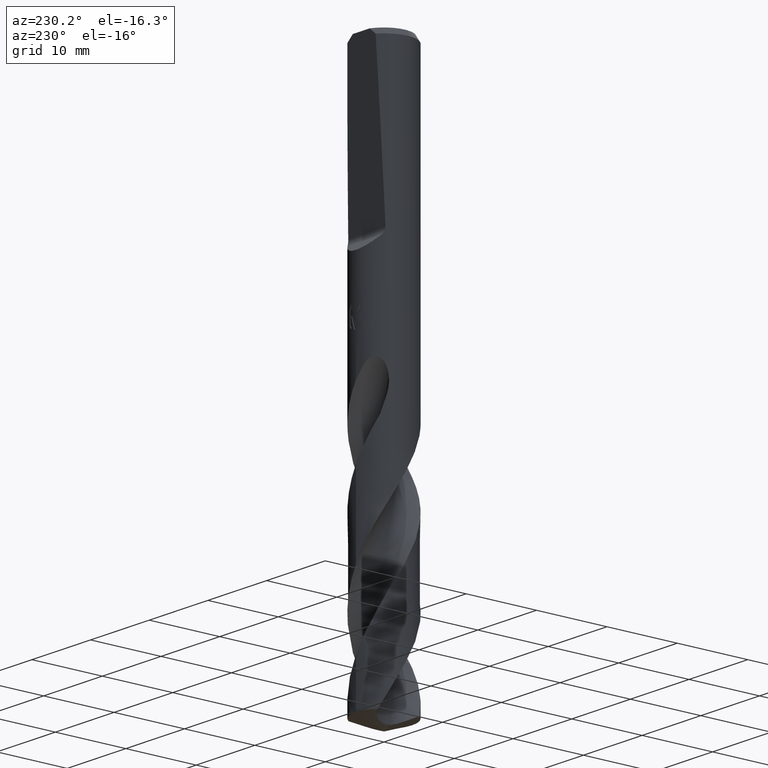
[diagram: clean part render]
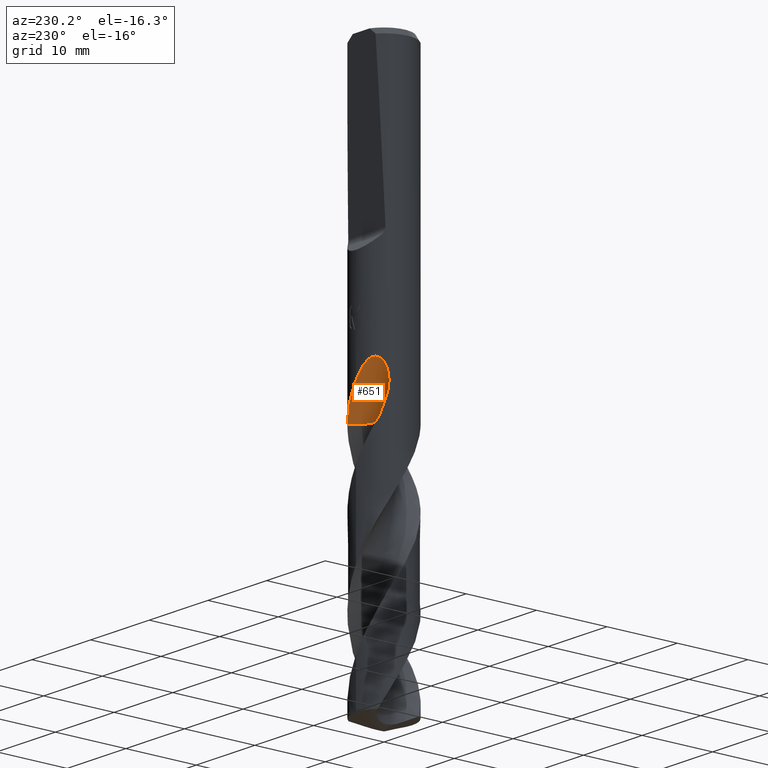
[diagram: same view with one face highlighted and labeled with its STEP entity id]
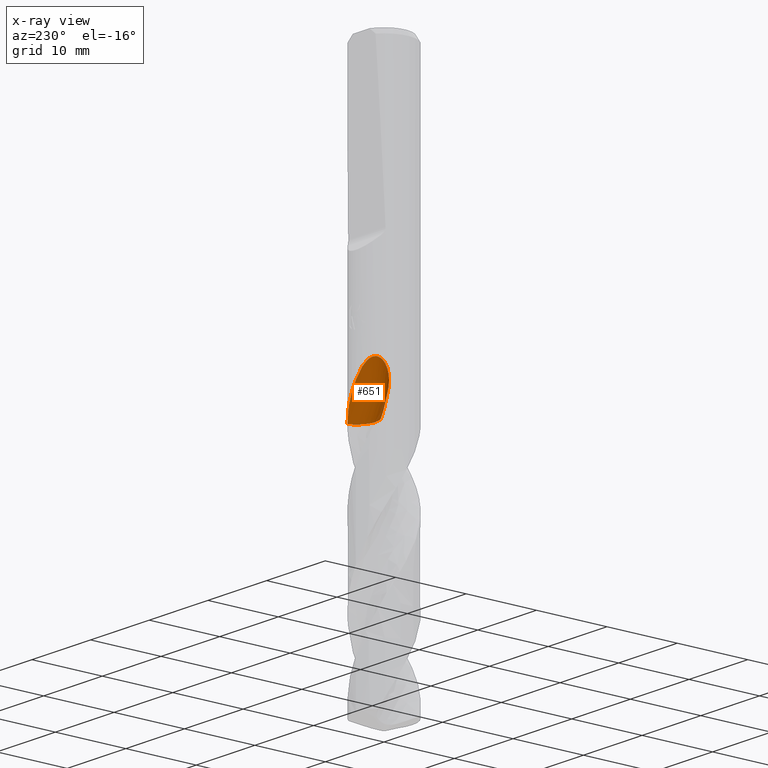
[diagram: x-ray of the same camera — body ghosted, the highlighted face saturated]
A machine part, auxiliary view. The second image highlights one B-rep face of the part: STEP entity #651.
The next image is the same camera in x-ray: the body ghosted, the highlighted face saturated — about 0% of this face is hidden behind the body in this view.
In plain terms, the highlighted face is a SurfaceOfRevolution surface.
Its self-contained STEP definition (entity closure, byte-faithful):
#291=VERTEX_POINT('',#822);
#335=EDGE_CURVE('',#445,#657,#870,.T.);
#337=EDGE_CURVE('',#535,#427,#872,.T.);
#399=EDGE_CURVE('',#427,#657,#937,.T.);
#427=VERTEX_POINT('',#967);
#445=VERTEX_POINT('',#986);
#475=EDGE_CURVE('',#291,#535,#1020,.T.);
#517=EDGE_CURVE('',#291,#445,#1066,.T.);
#535=VERTEX_POINT('',#1085);
#651=ADVANCED_FACE('',(#1215),#1216,.F.);
#657=VERTEX_POINT('',#1223);
#822=CARTESIAN_POINT('',(2.54885976013372,3.08274454393663,-44.053));
#870=B_SPLINE_CURVE_WITH_KNOTS('',3,(#1747,#1748,#1749,#1750,#1751,#1752,#1753,#1754,#1755,#1756,#1757,#1758,#1759,#1760,#1761,#1762,#1763,#1764,#1765,#1766,#1767,#1768,#1769,#1770,#1771,#1772,#1773,#1774,#1775,#1776),.UNSPECIFIED.,.F.,.F.,(4,2,2,2,2,2,2,2,2,2,2,2,2,2,4),(0.0,1.95977624076947,3.02985967370601,3.99908599318628,5.12509377225497,6.47768674139893,7.65000215056745,8.18125540149243,8.56953673186918,8.93696441781958,9.40306833899562,10.0849972789289,11.0544394482072,11.6888355435218,12.3555427460094),.UNSPECIFIED.);
#872=CIRCLE('',#1779,2.66666667);
#937=CIRCLE('',#3484,17.3810396163249);
#967=CARTESIAN_POINT('',(-1.88561808545044,1.98104858454956,-44.053));
#986=CARTESIAN_POINT('',(-1.18618515617536E-012,4.0,-39.8010886237942));
#1020=CIRCLE('',#3808,2.66666667);
#1066=B_SPLINE_CURVE_WITH_KNOTS('',3,(#5105,#5106,#5107,#5108,#5109,#5110,#5111,#5112,#5113,#5114,#5115,#5116,#5117,#5118,#5119,#5120,#5121,#5122,#5123,#5124,#5125,#5126,#5127,#5128,#5129,#5130,#5131,#5132,#5133,#5134),.UNSPECIFIED.,.F.,.F.,(4,2,2,2,2,2,2,2,2,2,2,2,2,2,4),(0.0,1.95977624076947,3.02985967370601,3.99908599318628,5.12509377225497,6.47768674139893,7.65000215056745,8.18125540149243,8.56953673186918,8.93696441781958,9.40306833899562,10.0849972789289,11.0544394482072,11.6888355435218,12.3555427460094),.UNSPECIFIED.);
#1085=CARTESIAN_POINT('',(-0.430226028381969,1.23492036873686,-44.053));
#1215=FACE_OUTER_BOUND('',#6675,.T.);
#1216=SURFACE_OF_REVOLUTION('',#6676,#6677);
#1223=CARTESIAN_POINT('',(-3.25456865325919,2.32546401417495,-41.862679091506));
#1747=CARTESIAN_POINT('',(2.54885976013372,3.08274454393663,-44.053));
#1748=CARTESIAN_POINT('',(2.28500523660261,3.30090345005828,-43.4966417767988));
#1749=CARTESIAN_POINT('',(1.98163231588755,3.49483155995579,-42.977936421169));
#1750=CARTESIAN_POINT('',(1.45264038690851,3.73253113273964,-42.1114036522164));
#1751=CARTESIAN_POINT('',(1.26228426683794,3.80090830680974,-41.8065283302372));
#1752=CARTESIAN_POINT('',(0.893778878987872,3.90310035133813,-41.2163687713547));
#1753=CARTESIAN_POINT('',(0.717274980064568,3.93920455800775,-40.9338353559214));
#1754=CARTESIAN_POINT('',(0.33521839832061,3.99131183045806,-40.3249008687614));
#1755=CARTESIAN_POINT('',(0.126474396085212,4.00354517408276,-39.9937333591078));
#1756=CARTESIAN_POINT('',(-0.337092631504132,3.99379417253619,-39.2852567198373));
#1757=CARTESIAN_POINT('',(-0.611941054861174,3.96363461880695,-38.8821257542007));
#1758=CARTESIAN_POINT('',(-1.14195068256935,3.84183599193105,-38.2173906398542));
#1759=CARTESIAN_POINT('',(-1.43518376737336,3.74904084478621,-37.8930259656217));
#1760=CARTESIAN_POINT('',(-1.87898919238026,3.53454780533531,-37.5892910671245));
#1761=CARTESIAN_POINT('',(-2.02589175203402,3.45357173492742,-37.5142260075858));
#1762=CARTESIAN_POINT('',(-2.28329880223286,3.28684001880265,-37.4565626198684));
#1763=CARTESIAN_POINT('',(-2.38887588461981,3.21090914700583,-37.4554859280565));
#1764=CARTESIAN_POINT('',(-2.58551889986573,3.05450740730473,-37.5059535003711));
#1765=CARTESIAN_POINT('',(-2.67152074136922,2.97896849222708,-37.5532713078944));
#1766=CARTESIAN_POINT('',(-2.8465335331701,2.81343086569157,-37.7013232644774));
#1767=CARTESIAN_POINT('',(-2.92750237022738,2.72764511666503,-37.8106329899809));
#1768=CARTESIAN_POINT('',(-3.09335272716449,2.54032566393313,-38.1099569518954));
#1769=CARTESIAN_POINT('',(-3.17262589307935,2.43831682967142,-38.331966872197));
#1770=CARTESIAN_POINT('',(-3.32169614375785,2.23348439746403,-38.953125946192));
#1771=CARTESIAN_POINT('',(-3.37558848211908,2.14623565430961,-39.3955071231946));
#1772=CARTESIAN_POINT('',(-3.40226299691169,2.10356902640446,-40.21424616535));
#1773=CARTESIAN_POINT('',(-3.39599104218287,2.1139685132873,-40.5403087544243));
#1774=CARTESIAN_POINT('',(-3.35169145718829,2.18356392775092,-41.2020529092011));
#1775=CARTESIAN_POINT('',(-3.31213718412787,2.24489483106254,-41.5352437340999));
#1776=CARTESIAN_POINT('',(-3.25456865325918,2.32546401417496,-41.862679091506));
#1779=AXIS2_PLACEMENT_3D('',#7995,#7996,#7997);
#3484=AXIS2_PLACEMENT_3D('',#8025,#8026,#8027);
#3808=AXIS2_PLACEMENT_3D('',#8103,#8104,#8105);
#5105=CARTESIAN_POINT('',(2.54885976013372,3.08274454393663,-44.053));
#5106=CARTESIAN_POINT('',(2.28500523660261,3.30090345005828,-43.4966417767988));
#5107=CARTESIAN_POINT('',(1.98163231588755,3.49483155995579,-42.977936421169));
#5108=CARTESIAN_POINT('',(1.45264038690851,3.73253113273964,-42.1114036522164));
#5109=CARTESIAN_POINT('',(1.26228426683794,3.80090830680974,-41.8065283302372));
#5110=CARTESIAN_POINT('',(0.893778878987872,3.90310035133813,-41.2163687713547));
#5111=CARTESIAN_POINT('',(0.717274980064568,3.93920455800775,-40.9338353559214));
#5112=CARTESIAN_POINT('',(0.33521839832061,3.99131183045806,-40.3249008687614));
#5113=CARTESIAN_POINT('',(0.126474396085212,4.00354517408276,-39.9937333591078));
#5114=CARTESIAN_POINT('',(-0.337092631504132,3.99379417253619,-39.2852567198373));
#5115=CARTESIAN_POINT('',(-0.611941054861174,3.96363461880695,-38.8821257542007));
#5116=CARTESIAN_POINT('',(-1.14195068256935,3.84183599193105,-38.2173906398542));
#5117=CARTESIAN_POINT('',(-1.43518376737336,3.74904084478621,-37.8930259656217));
#5118=CARTESIAN_POINT('',(-1.87898919238026,3.53454780533531,-37.5892910671245));
#5119=CARTESIAN_POINT('',(-2.02589175203402,3.45357173492742,-37.5142260075858));
#5120=CARTESIAN_POINT('',(-2.28329880223286,3.28684001880265,-37.4565626198684));
#5121=CARTESIAN_POINT('',(-2.38887588461981,3.21090914700583,-37.4554859280565));
#5122=CARTESIAN_POINT('',(-2.58551889986573,3.05450740730473,-37.5059535003711));
#5123=CARTESIAN_POINT('',(-2.67152074136922,2.97896849222708,-37.5532713078944));
#5124=CARTESIAN_POINT('',(-2.8465335331701,2.81343086569157,-37.7013232644774));
#5125=CARTESIAN_POINT('',(-2.92750237022738,2.72764511666503,-37.8106329899809));
#5126=CARTESIAN_POINT('',(-3.09335272716449,2.54032566393313,-38.1099569518954));
#5127=CARTESIAN_POINT('',(-3.17262589307935,2.43831682967142,-38.331966872197));
#5128=CARTESIAN_POINT('',(-3.32169614375785,2.23348439746403,-38.953125946192));
#5129=CARTESIAN_POINT('',(-3.37558848211908,2.14623565430961,-39.3955071231946));
#5130=CARTESIAN_POINT('',(-3.40226299691169,2.10356902640446,-40.21424616535));
#5131=CARTESIAN_POINT('',(-3.39599104218287,2.1139685132873,-40.5403087544243));
#5132=CARTESIAN_POINT('',(-3.35169145718829,2.18356392775092,-41.2020529092011));
#5133=CARTESIAN_POINT('',(-3.31213718412787,2.24489483106254,-41.5352437340999));
#5134=CARTESIAN_POINT('',(-3.25456865325918,2.32546401417496,-41.862679091506));
#6675=EDGE_LOOP('',(#8328,#8329,#8330,#8331,#8332));
#6676=(B_SPLINE_CURVE(3,(#8334,#8335,#8336,#8337,#8338,#8339,#8340,#8341,#8342),.UNSPECIFIED.,.F.,.F.)B_SPLINE_CURVE_WITH_KNOTS((4,1,3,1,4),(-2.85637185927229,-2.55358282198741,-2.25079378470252,-1.94800474741763,-1.64521571013274),.UNSPECIFIED.)RATIONAL_B_SPLINE_CURVE((1.09168120109991,1.03056040036664,0.969439599633363,1.03056040036664,1.09168120109991,1.03056040036664,0.969439599633363,1.03056040036664,1.09168120109991))BOUNDED_CURVE()REPRESENTATION_ITEM('')GEOMETRIC_REPRESENTATION_ITEM()CURVE());
#6677=AXIS1_PLACEMENT('',#8349,#8350);
#7995=CARTESIAN_POINT('',(1.63299322933957E-005,3.86665034006771,-44.053));
#7996=DIRECTION('',(0.0,0.0,-1.0));
#7997=DIRECTION('',(0.707100657435429,0.707112904884633,0.0));
#8025=CARTESIAN_POINT('',(-1.35595008391942,19.33333335,-44.9004688024496));
#8026=DIRECTION('',(-0.847998304005088,0.0,-0.52999894000318));
#8027=DIRECTION('',(-0.0535598120485791,-0.994880693178143,0.0856956992777266));
#8103=CARTESIAN_POINT('',(1.63299322933957E-005,3.86665034006771,-44.053));
#8104=DIRECTION('',(0.0,0.0,-1.0));
#8105=DIRECTION('',(0.707100657435429,0.707112904884633,0.0));
#8328=ORIENTED_EDGE('',*,*,#517,.F.);
#8329=ORIENTED_EDGE('',*,*,#475,.T.);
#8330=ORIENTED_EDGE('',*,*,#337,.T.);
#8331=ORIENTED_EDGE('',*,*,#399,.T.);
#8332=ORIENTED_EDGE('',*,*,#335,.F.);
#8334=CARTESIAN_POINT('',(-1.88561808545044,1.98104858454956,-44.053));
#8335=CARTESIAN_POINT('',(-1.51627887929108,1.61170298119184,-44.053));
#8336=CARTESIAN_POINT('',(-0.555888248773313,1.08689778631539,-44.053));
#8337=CARTESIAN_POINT('',(0.532470674678381,1.20198692350343,-44.053));
#8338=CARTESIAN_POINT('',(1.01544885395796,1.40088313328606,-44.053));
#8339=CARTESIAN_POINT('',(1.49842703323753,1.59977934306869,-44.053));
#8340=CARTESIAN_POINT('',(2.35220999330017,2.28448753847919,-44.053));
#8341=CARTESIAN_POINT('',(2.66452195405557,3.3334069323912,-44.053));
#8342=CARTESIAN_POINT('',(2.66666064626455,3.85573159189116,-44.053));
#8349=CARTESIAN_POINT('',(-1.35595008391942,19.33333335,-44.9004688024496));
#8350=DIRECTION('',(0.847998304005088,-0.0,0.52999894000318));